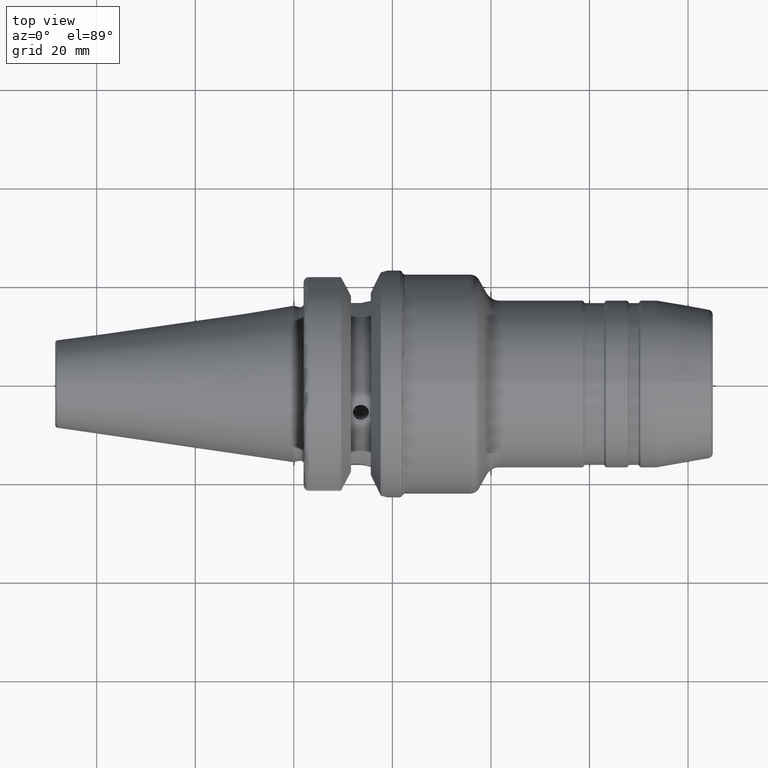
[diagram: clean part render]
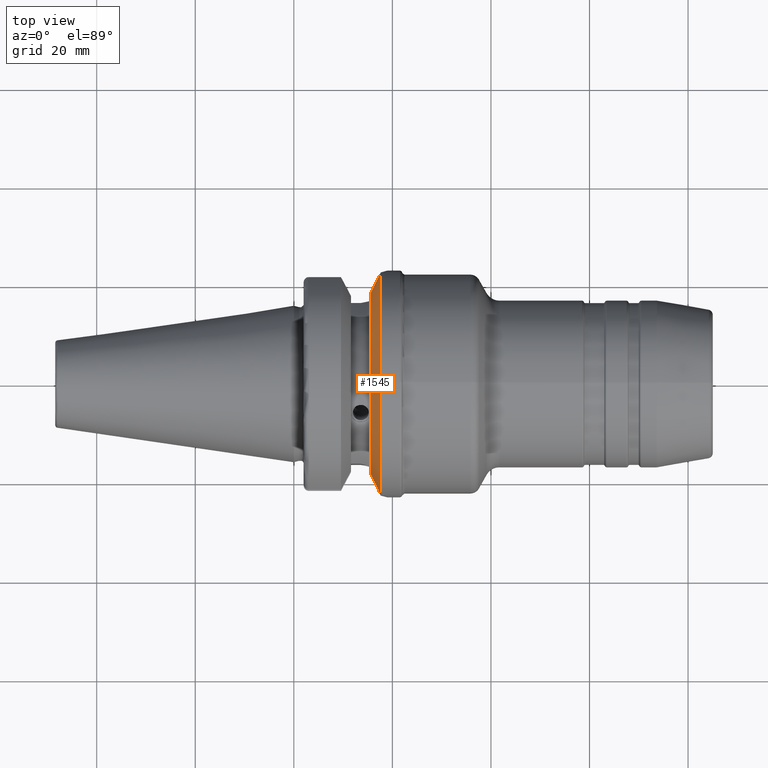
[diagram: same view with one face highlighted and labeled with its STEP entity id]
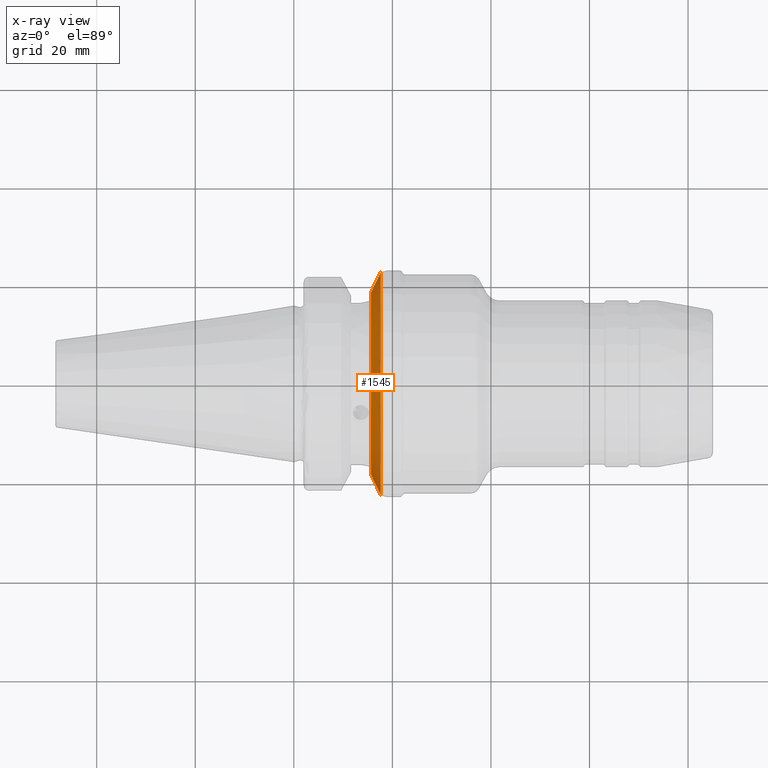
[diagram: x-ray of the same camera — body ghosted, the highlighted face saturated]
A machine part, top view. The second image highlights one B-rep face of the part: STEP entity #1545.
The next image is the same camera in x-ray: the body ghosted, the highlighted face saturated — about 0% of this face is hidden behind the body in this view.
In plain terms, the highlighted conical surface has half-angle 60.125 deg.
Its self-contained STEP definition (entity closure, byte-faithful):
#62=B_SPLINE_CURVE_WITH_KNOTS('',3,(#2886,#2887,#2888,#2889,#2890,#2891),
 .UNSPECIFIED.,.F.,.F.,(4,2,4),(9.25978800315029,9.40675815006574,9.7527233553007),
 .UNSPECIFIED.);
#69=B_SPLINE_CURVE_WITH_KNOTS('',3,(#3005,#3006,#3007,#3008,#3009,#3010),
 .UNSPECIFIED.,.F.,.F.,(4,2,4),(1.87172696882225,2.21769217405721,2.36466232097266),
 .UNSPECIFIED.);
#112=CONICAL_SURFACE('',#1767,21.2331286619655,1.04937921276159);
#377=FACE_OUTER_BOUND('',#479,.T.);
#479=EDGE_LOOP('',(#1373,#1374,#1375,#1376));
#575=CIRCLE('',#1746,23.);
#584=CIRCLE('',#1768,19.466257323931);
#713=VERTEX_POINT('',#2878);
#714=VERTEX_POINT('',#2885);
#721=VERTEX_POINT('',#2929);
#733=VERTEX_POINT('',#3003);
#912=EDGE_CURVE('',#713,#714,#62,.T.);
#928=EDGE_CURVE('',#721,#713,#575,.T.);
#950=EDGE_CURVE('',#733,#721,#69,.T.);
#956=EDGE_CURVE('',#733,#714,#584,.T.);
#1373=ORIENTED_EDGE('',*,*,#912,.F.);
#1374=ORIENTED_EDGE('',*,*,#928,.F.);
#1375=ORIENTED_EDGE('',*,*,#950,.F.);
#1376=ORIENTED_EDGE('',*,*,#956,.T.);
#1545=ADVANCED_FACE('',(#377),#112,.T.);
#1746=AXIS2_PLACEMENT_3D('',#2940,#2183,#2184);
#1767=AXIS2_PLACEMENT_3D('',#3022,#2237,#2238);
#1768=AXIS2_PLACEMENT_3D('',#3023,#2239,#2240);
#2183=DIRECTION('center_axis',(1.,1.62798202122572E-21,0.));
#2184=DIRECTION('ref_axis',(0.,0.,-1.));
#2237=DIRECTION('center_axis',(1.,1.62798202122572E-21,0.));
#2238=DIRECTION('ref_axis',(0.,1.,0.));
#2239=DIRECTION('center_axis',(1.,1.62798202122572E-21,0.));
#2240=DIRECTION('ref_axis',(0.,0.,-1.));
#2878=CARTESIAN_POINT('',(17.6299409595063,-22.5570191120744,4.49231441213885));
#2885=CARTESIAN_POINT('',(15.6,-18.3236233917175,6.57114906237867));
#2886=CARTESIAN_POINT('Ctrl Pts',(17.6299409595063,-22.5570191120744,4.49231441213885));
#2887=CARTESIAN_POINT('Ctrl Pts',(17.4363948664282,-22.1561594342104,4.78011182703289));
#2888=CARTESIAN_POINT('Ctrl Pts',(17.2377433516599,-21.7440485808551,5.03500381733927));
#2889=CARTESIAN_POINT('Ctrl Pts',(16.6013448473778,-20.4213600687136,5.77346727707879));
#2890=CARTESIAN_POINT('Ctrl Pts',(16.1098572405085,-19.3959223553921,6.21035429941431));
#2891=CARTESIAN_POINT('Ctrl Pts',(15.6,-18.3236233917175,6.57114906237867));
#2929=CARTESIAN_POINT('',(17.6299409595063,22.5570191120744,4.49231441213885));
#2940=CARTESIAN_POINT('Origin',(17.6299409595063,2.08176427085476E-15,0.));
#3003=CARTESIAN_POINT('',(15.6,18.3236233917175,6.57114906237867));
#3005=CARTESIAN_POINT('Ctrl Pts',(15.6,18.3236233917175,6.57114906237867));
#3006=CARTESIAN_POINT('Ctrl Pts',(16.1098572405085,19.3959223553921,6.21035429941431));
#3007=CARTESIAN_POINT('Ctrl Pts',(16.6013448473778,20.4213600687136,5.77346727707879));
#3008=CARTESIAN_POINT('Ctrl Pts',(17.2377433516599,21.744048580855,5.03500381733928));
#3009=CARTESIAN_POINT('Ctrl Pts',(17.4363948664282,22.1561594342104,4.78011182703289));
#3010=CARTESIAN_POINT('Ctrl Pts',(17.6299409595063,22.5570191120744,4.49231441213885));
#3022=CARTESIAN_POINT('Origin',(16.6149704797531,2.08176261850107E-15,0.));
#3023=CARTESIAN_POINT('Origin',(15.6,2.08176096614738E-15,0.));